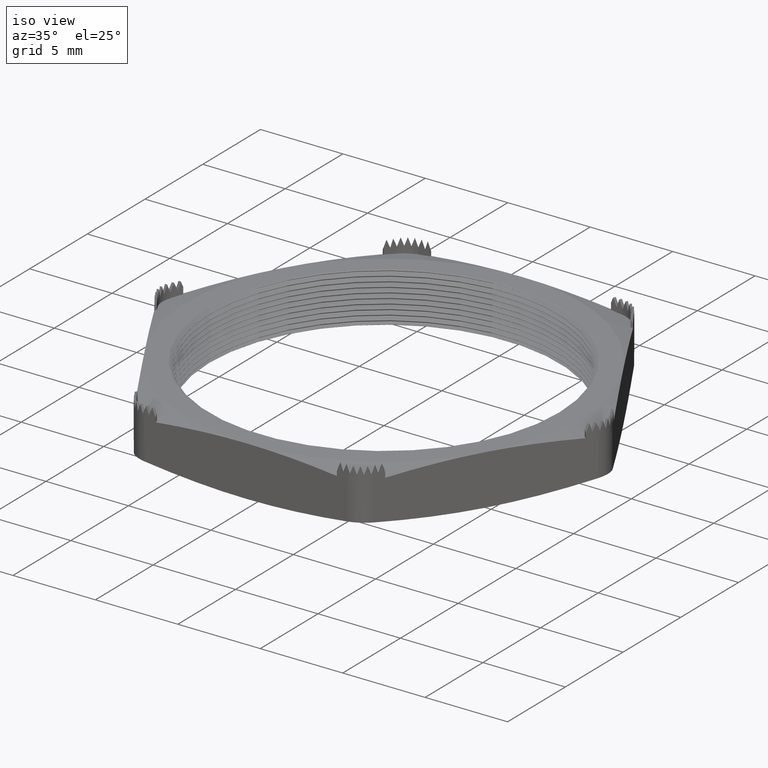
[diagram: clean part render]
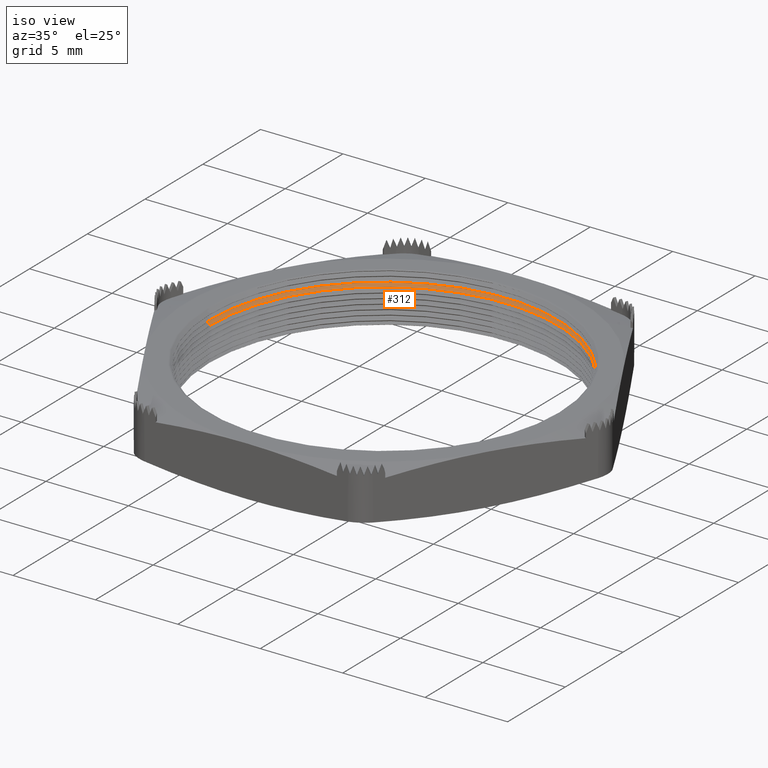
[diagram: same view with one face highlighted and labeled with its STEP entity id]
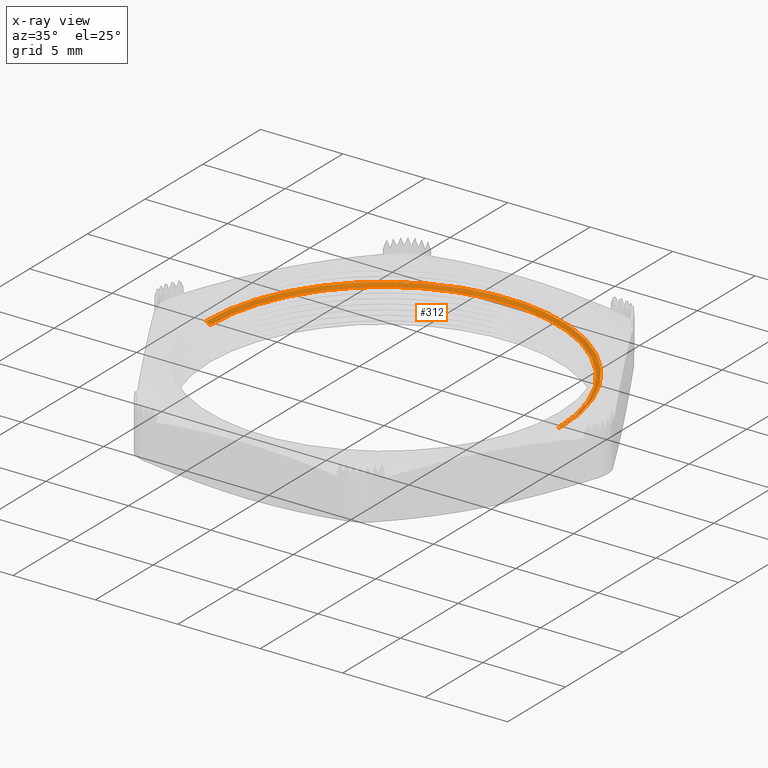
[diagram: x-ray of the same camera — body ghosted, the highlighted face saturated]
A machine part, iso view. The second image highlights one B-rep face of the part: STEP entity #312.
The next image is the same camera in x-ray: the body ghosted, the highlighted face saturated — about 0% of this face is hidden behind the body in this view.
In plain terms, the highlighted conical surface has half-angle 60 deg.
Its self-contained STEP definition (entity closure, byte-faithful):
#200 = EDGE_CURVE ( 'NONE', #1740, #1739, #2738, .T. ) ;
#238 = EDGE_LOOP ( 'NONE', ( #239, #290, #291, #292 ) ) ;
#239 = ORIENTED_EDGE ( 'NONE', *, *, #1742, .F. ) ;
#290 = ORIENTED_EDGE ( 'NONE', *, *, #200, .F. ) ;
#291 = ORIENTED_EDGE ( 'NONE', *, *, #1828, .T. ) ;
#292 = ORIENTED_EDGE ( 'NONE', *, *, #311, .T. ) ;
#311 = EDGE_CURVE ( 'NONE', #1826, #1743, #2874, .T. ) ;
#312 = ADVANCED_FACE ( 'NONE', ( #2934 ), #2927, .F. ) ;
#1739 = VERTEX_POINT ( 'NONE', #5168 ) ;
#1740 = VERTEX_POINT ( 'NONE', #5167 ) ;
#1742 = EDGE_CURVE ( 'NONE', #1739, #1743, #5166, .T. ) ;
#1743 = VERTEX_POINT ( 'NONE', #5223 ) ;
#1826 = VERTEX_POINT ( 'NONE', #5364 ) ;
#1828 = EDGE_CURVE ( 'NONE', #1740, #1826, #5363, .T. ) ;
#2734 = DIRECTION ( 'NONE',  ( 1.000000000000000000, 0.0000000000000000000, 0.0000000000000000000 ) ) ;
#2735 = DIRECTION ( 'NONE',  ( 0.0000000000000000000, 0.0000000000000000000, 1.000000000000000000 ) ) ;
#2736 = CARTESIAN_POINT ( 'NONE',  ( 0.0000000000000000000, 0.0000000000000000000, 0.08445299461620751900 ) ) ;
#2737 = AXIS2_PLACEMENT_3D ( 'NONE', #2736, #2735, #2734 ) ;
#2738 = CIRCLE ( 'NONE', #2737, 0.4150000000000000900 ) ;
#2874 = CIRCLE ( 'NONE', #2933, 0.4250000000000001000 ) ;
#2924 = DIRECTION ( 'NONE',  ( 1.000000000000000000, 0.0000000000000000000, 0.0000000000000000000 ) ) ;
#2925 = DIRECTION ( 'NONE',  ( 0.0000000000000000000, 0.0000000000000000000, 1.000000000000000000 ) ) ;
#2926 = AXIS2_PLACEMENT_3D ( 'NONE', #2929, #2925, #2924 ) ;
#2927 = CONICAL_SURFACE ( 'NONE', #2926, 0.4150000000000000900, 1.047197551196592500 ) ;
#2929 = CARTESIAN_POINT ( 'NONE',  ( 0.0000000000000000000, 0.0000000000000000000, 0.08445299461620751900 ) ) ;
#2930 = DIRECTION ( 'NONE',  ( 1.000000000000000000, 0.0000000000000000000, 0.0000000000000000000 ) ) ;
#2931 = DIRECTION ( 'NONE',  ( 0.0000000000000000000, 0.0000000000000000000, 1.000000000000000000 ) ) ;
#2932 = CARTESIAN_POINT ( 'NONE',  ( 0.0000000000000000000, 0.0000000000000000000, 0.09022649730810385100 ) ) ;
#2933 = AXIS2_PLACEMENT_3D ( 'NONE', #2932, #2931, #2930 ) ;
#2934 = FACE_OUTER_BOUND ( 'NONE', #238, .T. ) ;
#5165 = CARTESIAN_POINT ( 'NONE',  ( -0.4150000000000000900, 5.082284216461516900E-017, 0.08445299461620751900 ) ) ;
#5166 = LINE ( 'NONE', #5165, #5225 ) ;
#5167 = CARTESIAN_POINT ( 'NONE',  ( 0.4150000000000000900, 5.082284216461515600E-017, 0.08445299461620751900 ) ) ;
#5168 = CARTESIAN_POINT ( 'NONE',  ( -0.4150000000000000900, 0.0000000000000000000, 0.08445299461620751900 ) ) ;
#5223 = CARTESIAN_POINT ( 'NONE',  ( -0.4250000000000001000, 0.0000000000000000000, 0.09022649730810385100 ) ) ;
#5224 = DIRECTION ( 'NONE',  ( -0.8660254037844360400, 1.060575238724903700E-016, 0.5000000000000045500 ) ) ;
#5225 = VECTOR ( 'NONE', #5224, 39.37007874015748100 ) ;
#5360 = DIRECTION ( 'NONE',  ( 0.8660254037844360400, 0.0000000000000000000, 0.5000000000000045500 ) ) ;
#5361 = VECTOR ( 'NONE', #5360, 39.37007874015748100 ) ;
#5362 = CARTESIAN_POINT ( 'NONE',  ( 0.4150000000000000900, 0.0000000000000000000, 0.08445299461620751900 ) ) ;
#5363 = LINE ( 'NONE', #5362, #5361 ) ;
#5364 = CARTESIAN_POINT ( 'NONE',  ( 0.4250000000000001000, 5.204748896376252500E-017, 0.09022649730810385100 ) ) ;